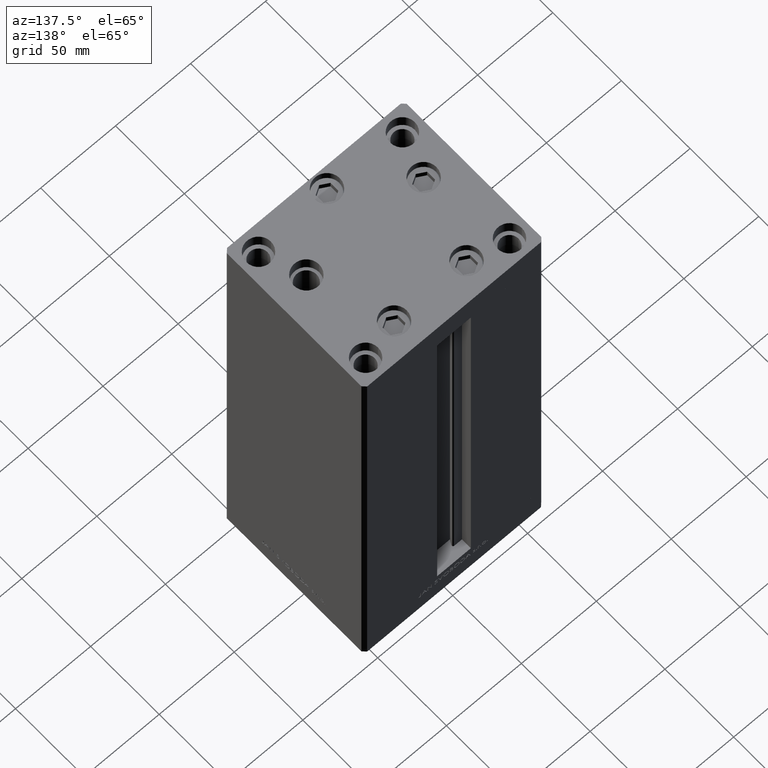
[diagram: clean part render]
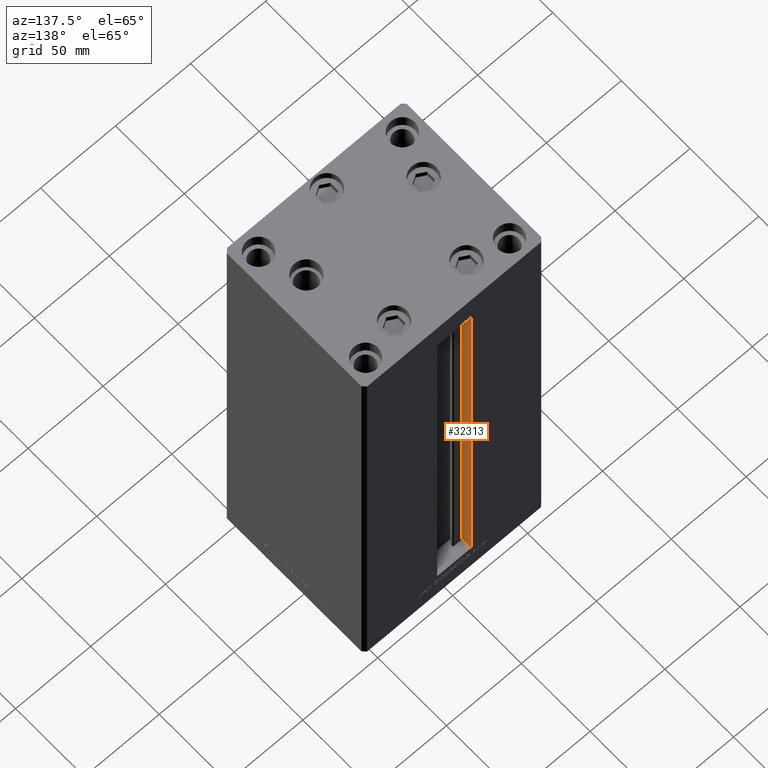
[diagram: same view with one face highlighted and labeled with its STEP entity id]
A machine part, auxiliary view. The second image highlights one B-rep face of the part: STEP entity #32313.
In plain terms, the highlighted planar face has unit normal (-1, 0, 0).
Its self-contained STEP definition (entity closure, byte-faithful):
#77 = EDGE_LOOP ( 'NONE', ( #38957, #19191, #29194, #33997 ) ) ;
#149 = CARTESIAN_POINT ( 'NONE',  ( -11.25000000000000178, 51.00000000000000000, 268.5000000000000000 ) ) ;
#3236 = DIRECTION ( 'NONE',  ( -0.000000000000000000, -1.000000000000000000, -0.000000000000000000 ) ) ;
#3407 = VERTEX_POINT ( 'NONE', #149 ) ;
#4796 = LINE ( 'NONE', #9004, #29720 ) ;
#5439 = CARTESIAN_POINT ( 'NONE',  ( -11.25000000000000178, 44.50000000000000000, 0.000000000000000000 ) ) ;
#6183 = PLANE ( 'NONE',  #8992 ) ;
#7211 = EDGE_CURVE ( 'NONE', #20294, #18331, #36066, .T. ) ;
#8992 = AXIS2_PLACEMENT_3D ( 'NONE', #5439, #13639, #36505 ) ;
#9004 = CARTESIAN_POINT ( 'NONE',  ( -11.25000000000000178, 44.50000000000000000, 0.000000000000000000 ) ) ;
#9532 = EDGE_CURVE ( 'NONE', #25653, #3407, #46117, .T. ) ;
#9790 = CARTESIAN_POINT ( 'NONE',  ( -11.25000000000000178, 51.00000000000000000, 0.000000000000000000 ) ) ;
#10802 = VECTOR ( 'NONE', #47581, 1000.000000000000000 ) ;
#13639 = DIRECTION ( 'NONE',  ( -1.000000000000000000, 0.000000000000000000, 0.000000000000000000 ) ) ;
#13958 = CARTESIAN_POINT ( 'NONE',  ( -11.25000000000000178, 44.50000000000000000, 268.5000000000000000 ) ) ;
#18331 = VERTEX_POINT ( 'NONE', #25988 ) ;
#18962 = VECTOR ( 'NONE', #23717, 1000.000000000000000 ) ;
#19191 = ORIENTED_EDGE ( 'NONE', *, *, #7211, .F. ) ;
#20294 = VERTEX_POINT ( 'NONE', #42026 ) ;
#20589 = VECTOR ( 'NONE', #3236, 1000.000000000000000 ) ;
#21102 = FACE_OUTER_BOUND ( 'NONE', #77, .T. ) ;
#23717 = DIRECTION ( 'NONE',  ( 0.000000000000000000, 1.000000000000000000, 0.000000000000000000 ) ) ;
#25653 = VERTEX_POINT ( 'NONE', #13958 ) ;
#25988 = CARTESIAN_POINT ( 'NONE',  ( -11.25000000000000178, 44.50000000000000000, 0.000000000000000000 ) ) ;
#28680 = LINE ( 'NONE', #9790, #10802 ) ;
#29194 = ORIENTED_EDGE ( 'NONE', *, *, #43819, .T. ) ;
#29720 = VECTOR ( 'NONE', #35357, 1000.000000000000000 ) ;
#32313 = ADVANCED_FACE ( 'NONE', ( #21102 ), #6183, .F. ) ;
#33997 = ORIENTED_EDGE ( 'NONE', *, *, #9532, .F. ) ;
#35357 = DIRECTION ( 'NONE',  ( -0.000000000000000000, -0.000000000000000000, 1.000000000000000000 ) ) ;
#36066 = LINE ( 'NONE', #43754, #20589 ) ;
#36505 = DIRECTION ( 'NONE',  ( 0.000000000000000000, 0.000000000000000000, 1.000000000000000000 ) ) ;
#38623 = EDGE_CURVE ( 'NONE', #18331, #25653, #4796, .T. ) ;
#38957 = ORIENTED_EDGE ( 'NONE', *, *, #38623, .F. ) ;
#42026 = CARTESIAN_POINT ( 'NONE',  ( -11.25000000000000178, 51.00000000000000000, 0.000000000000000000 ) ) ;
#43754 = CARTESIAN_POINT ( 'NONE',  ( -11.25000000000000178, 44.50000000000000000, 0.000000000000000000 ) ) ;
#43819 = EDGE_CURVE ( 'NONE', #20294, #3407, #28680, .T. ) ;
#45868 = CARTESIAN_POINT ( 'NONE',  ( -11.25000000000000178, 0.000000000000000000, 268.5000000000000000 ) ) ;
#46117 = LINE ( 'NONE', #45868, #18962 ) ;
#47581 = DIRECTION ( 'NONE',  ( -0.000000000000000000, -0.000000000000000000, 1.000000000000000000 ) ) ;